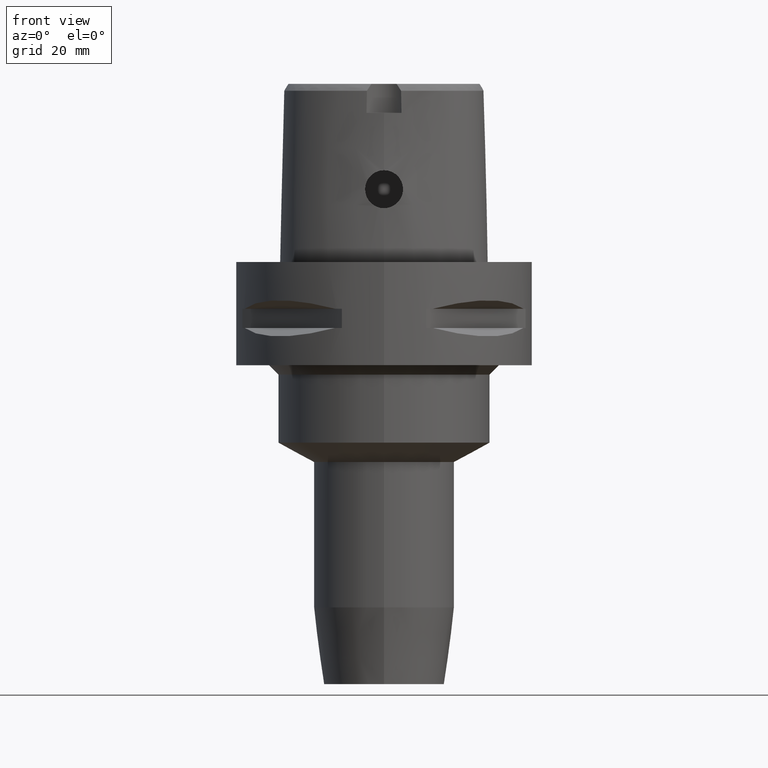
[diagram: clean part render]
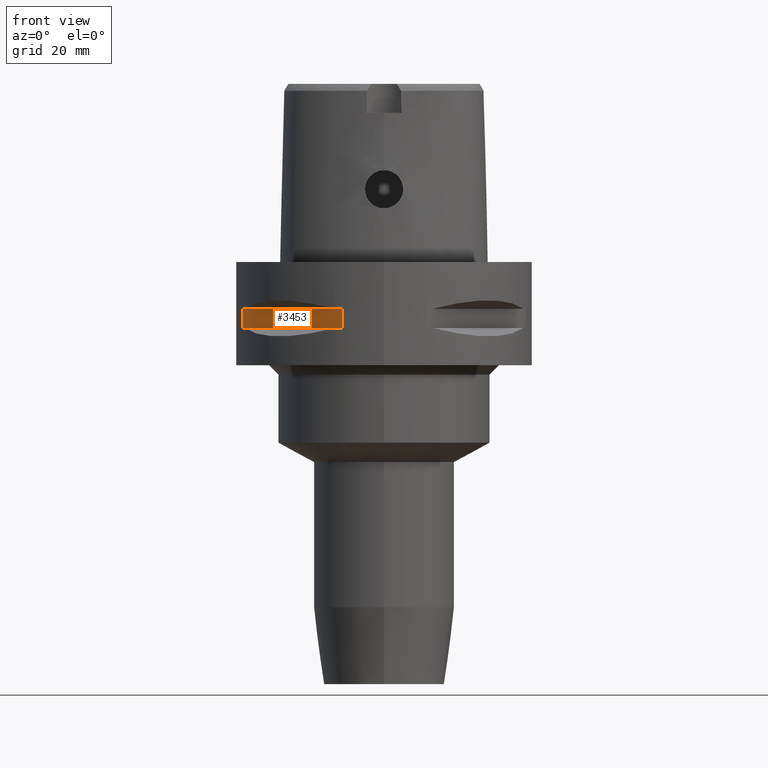
[diagram: same view with one face highlighted and labeled with its STEP entity id]
A machine part, front view. The second image highlights one B-rep face of the part: STEP entity #3453.
In plain terms, the highlighted planar face has unit normal (0.7071, 0.7071, 0).
Its self-contained STEP definition (entity closure, byte-faithful):
#426=DIRECTION('',(0.E0,0.E0,-1.E0));
#427=VECTOR('',#426,4.1E0);
#428=CARTESIAN_POINT('',(-3.019251670572E1,-8.981198972018E0,-9.95E0));
#429=LINE('',#428,#427);
#444=DIRECTION('',(0.E0,0.E0,1.E0));
#445=VECTOR('',#444,4.1E0);
#446=CARTESIAN_POINT('',(-8.981198972018E0,-3.019251670572E1,-1.405E1));
#447=LINE('',#446,#445);
#1513=DIRECTION('',(7.071067811865E-1,-7.071067811865E-1,0.E0));
#1514=VECTOR('',#1513,2.999733321480E1);
#1515=CARTESIAN_POINT('',(-3.019251670572E1,-8.981198972018E0,-9.95E0));
#1516=LINE('',#1515,#1514);
#1536=DIRECTION('',(7.071067811865E-1,-7.071067811865E-1,0.E0));
#1537=VECTOR('',#1536,2.999733321480E1);
#1538=CARTESIAN_POINT('',(-3.019251670572E1,-8.981198972018E0,-1.405E1));
#1539=LINE('',#1538,#1537);
#1599=CARTESIAN_POINT('',(-3.019251670572E1,-8.981198972020E0,-9.95E0));
#1600=VERTEX_POINT('',#1599);
#1601=CARTESIAN_POINT('',(-3.019251670572E1,-8.981198972018E0,-1.405E1));
#1602=VERTEX_POINT('',#1601);
#1606=CARTESIAN_POINT('',(-8.981198972020E0,-3.019251670572E1,-1.405E1));
#1607=VERTEX_POINT('',#1606);
#1608=CARTESIAN_POINT('',(-8.981198972018E0,-3.019251670572E1,-9.95E0));
#1609=VERTEX_POINT('',#1608);
#3441=CARTESIAN_POINT('',(-5.444722215136E0,-3.372899346260E1,-9.95E0));
#3442=DIRECTION('',(7.071067811865E-1,7.071067811865E-1,0.E0));
#3443=DIRECTION('',(0.E0,0.E0,-1.E0));
#3444=AXIS2_PLACEMENT_3D('',#3441,#3442,#3443);
#3445=PLANE('',#3444);
#3446=ORIENTED_EDGE('',*,*,#2463,.F.);
#3448=ORIENTED_EDGE('',*,*,#3447,.F.);
#3449=ORIENTED_EDGE('',*,*,#2455,.F.);
#3450=ORIENTED_EDGE('',*,*,#3434,.T.);
#3451=EDGE_LOOP('',(#3446,#3448,#3449,#3450));
#3452=FACE_OUTER_BOUND('',#3451,.F.);
#2455=EDGE_CURVE('',#1600,#1602,#429,.T.);
#2463=EDGE_CURVE('',#1607,#1609,#447,.T.);
#3434=EDGE_CURVE('',#1600,#1609,#1516,.T.);
#3447=EDGE_CURVE('',#1602,#1607,#1539,.T.);
#3453=ADVANCED_FACE('',(#3452),#3445,.F.);